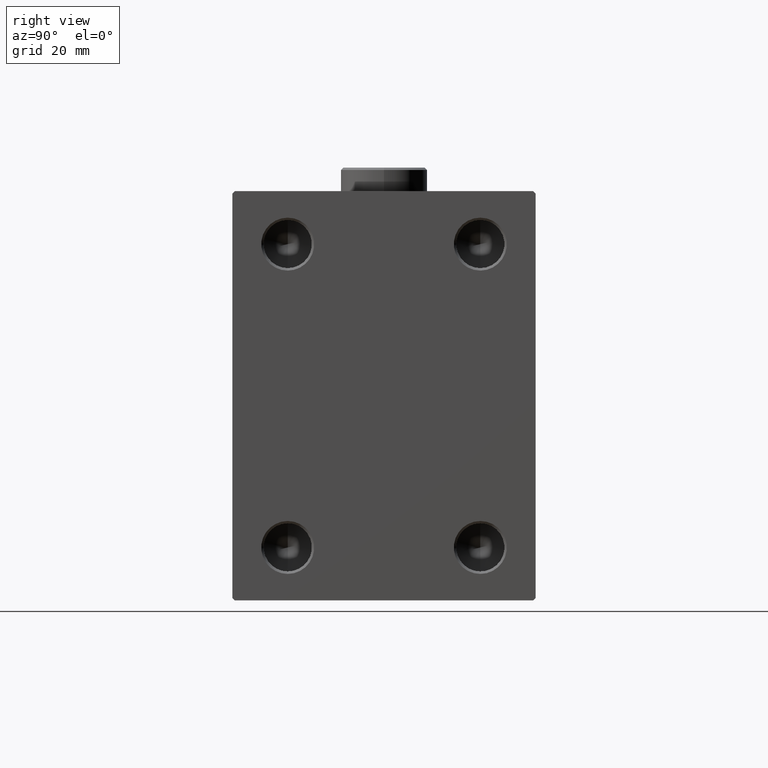
[diagram: clean part render]
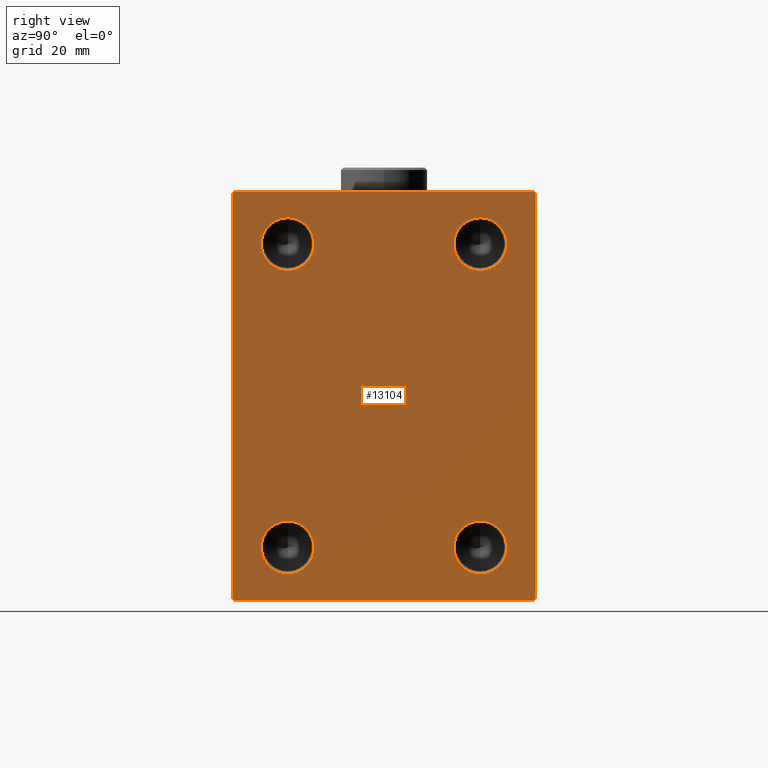
[diagram: same view with one face highlighted and labeled with its STEP entity id]
A machine part, right view. The second image highlights one B-rep face of the part: STEP entity #13104.
In plain terms, the highlighted planar face has unit normal (1, 0, 0).
Its self-contained STEP definition (entity closure, byte-faithful):
#237 = VECTOR ( 'NONE', #31313, 1000.000000000000000 ) ;
#495 = VECTOR ( 'NONE', #10926, 1000.000000000000000 ) ;
#1264 = AXIS2_PLACEMENT_3D ( 'NONE', #5725, #5270, #19765 ) ;
#1404 = VERTEX_POINT ( 'NONE', #1957 ) ;
#1792 = VERTEX_POINT ( 'NONE', #3763 ) ;
#1957 = CARTESIAN_POINT ( 'NONE',  ( 93.00000000000000000, 31.50000000000001421, -42.00000000000000711 ) ) ;
#2220 = CARTESIAN_POINT ( 'NONE',  ( 93.00000000000000000, 19.99999999999999645, 31.50000000000000000 ) ) ;
#2361 = AXIS2_PLACEMENT_3D ( 'NONE', #7574, #18849, #35681 ) ;
#2587 = EDGE_CURVE ( 'NONE', #4624, #18698, #13911, .T. ) ;
#2611 = VECTOR ( 'NONE', #16049, 999.9999999999998863 ) ;
#3508 = EDGE_CURVE ( 'NONE', #1792, #37501, #35100, .T. ) ;
#3623 = CARTESIAN_POINT ( 'NONE',  ( 93.00000000000000000, 31.00000000000000000, -42.50000000000000711 ) ) ;
#3717 = CARTESIAN_POINT ( 'NONE',  ( 93.00000000000000000, -31.00000000000000000, 42.49999999999998579 ) ) ;
#3763 = CARTESIAN_POINT ( 'NONE',  ( 93.00000000000000000, -20.00000000000000355, -25.99999999999999289 ) ) ;
#3961 = CARTESIAN_POINT ( 'NONE',  ( 93.00000000000000000, -20.00000000000000355, -37.00000000000000711 ) ) ;
#4113 = EDGE_CURVE ( 'NONE', #9943, #38829, #18216, .T. ) ;
#4624 = VERTEX_POINT ( 'NONE', #4744 ) ;
#4744 = CARTESIAN_POINT ( 'NONE',  ( 93.00000000000000000, 31.00000000000000000, 42.49999999999999289 ) ) ;
#5109 = DIRECTION ( 'NONE',  ( 0.000000000000000000, 0.000000000000000000, -1.000000000000000000 ) ) ;
#5224 = PLANE ( 'NONE',  #16298 ) ;
#5270 = DIRECTION ( 'NONE',  ( 1.000000000000000000, -0.000000000000000000, -0.000000000000000000 ) ) ;
#5314 = CARTESIAN_POINT ( 'NONE',  ( 93.00000000000000000, -31.50000000000000000, 41.99999999999998579 ) ) ;
#5420 = CARTESIAN_POINT ( 'NONE',  ( 93.00000000000000000, -31.50000000000000000, -42.50000000000000711 ) ) ;
#5454 = DIRECTION ( 'NONE',  ( 1.000000000000000000, -0.000000000000000000, -0.000000000000000000 ) ) ;
#5725 = CARTESIAN_POINT ( 'NONE',  ( 93.00000000000000000, -20.00000000000000355, -31.50000000000000000 ) ) ;
#6032 = EDGE_CURVE ( 'NONE', #21961, #38387, #40218, .T. ) ;
#6218 = LINE ( 'NONE', #38462, #237 ) ;
#6735 = EDGE_LOOP ( 'NONE', ( #19171, #9983 ) ) ;
#7081 = CARTESIAN_POINT ( 'NONE',  ( 93.00000000000000000, 19.99999999999999645, 37.00000000000000711 ) ) ;
#7145 = EDGE_LOOP ( 'NONE', ( #18475, #44959 ) ) ;
#7201 = CIRCLE ( 'NONE', #38091, 5.500000000000005329 ) ;
#7214 = DIRECTION ( 'NONE',  ( 0.000000000000000000, 0.000000000000000000, -1.000000000000000000 ) ) ;
#7574 = CARTESIAN_POINT ( 'NONE',  ( 93.00000000000000000, -20.00000000000000355, 31.50000000000000000 ) ) ;
#7927 = AXIS2_PLACEMENT_3D ( 'NONE', #29682, #43741, #44796 ) ;
#8453 = LINE ( 'NONE', #25737, #2611 ) ;
#8678 = CARTESIAN_POINT ( 'NONE',  ( 93.00000000000000000, 0.000000000000000000, 0.000000000000000000 ) ) ;
#8900 = FACE_BOUND ( 'NONE', #7145, .T. ) ;
#9140 = VERTEX_POINT ( 'NONE', #26507 ) ;
#9331 = VERTEX_POINT ( 'NONE', #28987 ) ;
#9427 = EDGE_CURVE ( 'NONE', #38387, #21961, #32209, .T. ) ;
#9513 = ORIENTED_EDGE ( 'NONE', *, *, #41461, .T. ) ;
#9522 = EDGE_CURVE ( 'NONE', #9866, #33808, #7201, .T. ) ;
#9653 = CARTESIAN_POINT ( 'NONE',  ( 93.00000000000000000, -20.00000000000000355, 37.00000000000000711 ) ) ;
#9866 = VERTEX_POINT ( 'NONE', #9653 ) ;
#9943 = VERTEX_POINT ( 'NONE', #5314 ) ;
#9983 = ORIENTED_EDGE ( 'NONE', *, *, #15320, .F. ) ;
#10443 = CIRCLE ( 'NONE', #2361, 5.500000000000005329 ) ;
#10926 = DIRECTION ( 'NONE',  ( -0.000000000000000000, 0.7071067811865328068, -0.7071067811865622277 ) ) ;
#11119 = CARTESIAN_POINT ( 'NONE',  ( 93.00000000000000000, -20.00000000000000355, 31.50000000000000000 ) ) ;
#11236 = CIRCLE ( 'NONE', #37008, 5.500000000000005329 ) ;
#11342 = CARTESIAN_POINT ( 'NONE',  ( 93.00000000000000000, -20.00000000000000355, 25.99999999999999289 ) ) ;
#11720 = CARTESIAN_POINT ( 'NONE',  ( 93.00000000000000000, 19.99999999999999645, -31.50000000000000000 ) ) ;
#12813 = DIRECTION ( 'NONE',  ( 0.000000000000000000, 0.000000000000000000, -1.000000000000000000 ) ) ;
#13104 = ADVANCED_FACE ( 'NONE', ( #33772, #22958, #33316, #8900, #22280 ), #5224, .T. ) ;
#13911 = LINE ( 'NONE', #21507, #30669 ) ;
#13940 = ORIENTED_EDGE ( 'NONE', *, *, #31252, .T. ) ;
#13994 = CARTESIAN_POINT ( 'NONE',  ( 93.00000000000000000, -31.50000000000000000, -41.99999999999998579 ) ) ;
#15196 = AXIS2_PLACEMENT_3D ( 'NONE', #11720, #25776, #39838 ) ;
#15227 = CARTESIAN_POINT ( 'NONE',  ( 93.00000000000000000, -31.50000000000000000, 42.49999999999998579 ) ) ;
#15320 = EDGE_CURVE ( 'NONE', #33808, #9866, #10443, .T. ) ;
#16049 = DIRECTION ( 'NONE',  ( -0.000000000000000000, 0.7071067811865574537, 0.7071067811865376918 ) ) ;
#16298 = AXIS2_PLACEMENT_3D ( 'NONE', #8678, #19720, #22739 ) ;
#16376 = EDGE_CURVE ( 'NONE', #43194, #9331, #11236, .T. ) ;
#16946 = CARTESIAN_POINT ( 'NONE',  ( 93.00000000000000000, -36.74999999999999289, 36.74999999999999289 ) ) ;
#17289 = ORIENTED_EDGE ( 'NONE', *, *, #2587, .T. ) ;
#17308 = DIRECTION ( 'NONE',  ( 1.000000000000000000, -0.000000000000000000, -0.000000000000000000 ) ) ;
#17428 = CIRCLE ( 'NONE', #20377, 5.500000000000005329 ) ;
#18016 = DIRECTION ( 'NONE',  ( 1.000000000000000000, -0.000000000000000000, -0.000000000000000000 ) ) ;
#18216 = LINE ( 'NONE', #15227, #33628 ) ;
#18475 = ORIENTED_EDGE ( 'NONE', *, *, #6032, .F. ) ;
#18698 = VERTEX_POINT ( 'NONE', #3717 ) ;
#18849 = DIRECTION ( 'NONE',  ( 1.000000000000000000, -0.000000000000000000, -0.000000000000000000 ) ) ;
#18921 = EDGE_CURVE ( 'NONE', #1404, #9140, #6218, .T. ) ;
#19171 = ORIENTED_EDGE ( 'NONE', *, *, #9522, .F. ) ;
#19226 = VERTEX_POINT ( 'NONE', #3623 ) ;
#19634 = EDGE_LOOP ( 'NONE', ( #38261, #29330 ) ) ;
#19693 = DIRECTION ( 'NONE',  ( 0.000000000000000000, 1.000000000000000000, 0.000000000000000000 ) ) ;
#19720 = DIRECTION ( 'NONE',  ( 1.000000000000000000, 0.000000000000000000, 0.000000000000000000 ) ) ;
#19765 = DIRECTION ( 'NONE',  ( 0.000000000000000000, 0.000000000000000000, -1.000000000000000000 ) ) ;
#19906 = ORIENTED_EDGE ( 'NONE', *, *, #27887, .T. ) ;
#20377 = AXIS2_PLACEMENT_3D ( 'NONE', #23360, #17308, #23800 ) ;
#21394 = CARTESIAN_POINT ( 'NONE',  ( 93.00000000000000000, 19.99999999999999645, -25.99999999999999289 ) ) ;
#21507 = CARTESIAN_POINT ( 'NONE',  ( 93.00000000000000000, 31.50000000000000000, 42.49999999999999289 ) ) ;
#21961 = VERTEX_POINT ( 'NONE', #21394 ) ;
#22020 = VECTOR ( 'NONE', #41157, 999.9999999999998863 ) ;
#22280 = FACE_OUTER_BOUND ( 'NONE', #35172, .T. ) ;
#22739 = DIRECTION ( 'NONE',  ( 0.000000000000000000, 0.000000000000000000, -1.000000000000000000 ) ) ;
#22958 = FACE_BOUND ( 'NONE', #6735, .T. ) ;
#22963 = LINE ( 'NONE', #23633, #22020 ) ;
#23360 = CARTESIAN_POINT ( 'NONE',  ( 93.00000000000000000, 19.99999999999999645, 31.50000000000000000 ) ) ;
#23633 = CARTESIAN_POINT ( 'NONE',  ( 93.00000000000000000, 36.75000000000042633, 36.74999999999941025 ) ) ;
#23800 = DIRECTION ( 'NONE',  ( 0.000000000000000000, 0.000000000000000000, -1.000000000000000000 ) ) ;
#24287 = VERTEX_POINT ( 'NONE', #28528 ) ;
#25408 = EDGE_LOOP ( 'NONE', ( #41013, #33703 ) ) ;
#25626 = DIRECTION ( 'NONE',  ( 1.000000000000000000, -0.000000000000000000, -0.000000000000000000 ) ) ;
#25737 = CARTESIAN_POINT ( 'NONE',  ( 93.00000000000000000, 36.74999999999957367, -36.75000000000059686 ) ) ;
#25776 = DIRECTION ( 'NONE',  ( 1.000000000000000000, -0.000000000000000000, -0.000000000000000000 ) ) ;
#26271 = VECTOR ( 'NONE', #19693, 1000.000000000000000 ) ;
#26507 = CARTESIAN_POINT ( 'NONE',  ( 93.00000000000000000, 31.50000000000000000, 41.99999999999997868 ) ) ;
#27122 = LINE ( 'NONE', #16946, #37327 ) ;
#27887 = EDGE_CURVE ( 'NONE', #19226, #1404, #8453, .T. ) ;
#28528 = CARTESIAN_POINT ( 'NONE',  ( 93.00000000000000000, -31.00000000000000000, -42.50000000000000711 ) ) ;
#28987 = CARTESIAN_POINT ( 'NONE',  ( 93.00000000000000000, 19.99999999999999645, 25.99999999999999289 ) ) ;
#29067 = CARTESIAN_POINT ( 'NONE',  ( 93.00000000000000000, -20.00000000000000355, -31.50000000000000000 ) ) ;
#29330 = ORIENTED_EDGE ( 'NONE', *, *, #31467, .F. ) ;
#29682 = CARTESIAN_POINT ( 'NONE',  ( 93.00000000000000000, 19.99999999999999645, -31.50000000000000000 ) ) ;
#30669 = VECTOR ( 'NONE', #41577, 1000.000000000000000 ) ;
#31115 = ORIENTED_EDGE ( 'NONE', *, *, #35412, .T. ) ;
#31252 = EDGE_CURVE ( 'NONE', #38829, #24287, #39490, .T. ) ;
#31313 = DIRECTION ( 'NONE',  ( 0.000000000000000000, -1.632680918566406547E-16, 1.000000000000000000 ) ) ;
#31467 = EDGE_CURVE ( 'NONE', #9331, #43194, #17428, .T. ) ;
#31882 = CARTESIAN_POINT ( 'NONE',  ( 93.00000000000000000, -36.75000000000065370, -36.74999999999911893 ) ) ;
#32209 = CIRCLE ( 'NONE', #7927, 5.500000000000005329 ) ;
#33166 = ORIENTED_EDGE ( 'NONE', *, *, #18921, .T. ) ;
#33283 = LINE ( 'NONE', #5420, #26271 ) ;
#33316 = FACE_BOUND ( 'NONE', #25408, .T. ) ;
#33628 = VECTOR ( 'NONE', #5109, 1000.000000000000000 ) ;
#33703 = ORIENTED_EDGE ( 'NONE', *, *, #41933, .F. ) ;
#33772 = FACE_BOUND ( 'NONE', #19634, .T. ) ;
#33808 = VERTEX_POINT ( 'NONE', #11342 ) ;
#35100 = CIRCLE ( 'NONE', #1264, 5.500000000000005329 ) ;
#35172 = EDGE_LOOP ( 'NONE', ( #17289, #38175, #36084, #13940, #31115, #19906, #33166, #9513 ) ) ;
#35253 = EDGE_CURVE ( 'NONE', #18698, #9943, #27122, .T. ) ;
#35412 = EDGE_CURVE ( 'NONE', #24287, #19226, #33283, .T. ) ;
#35681 = DIRECTION ( 'NONE',  ( 0.000000000000000000, 0.000000000000000000, -1.000000000000000000 ) ) ;
#36084 = ORIENTED_EDGE ( 'NONE', *, *, #4113, .T. ) ;
#37008 = AXIS2_PLACEMENT_3D ( 'NONE', #2220, #5454, #12813 ) ;
#37327 = VECTOR ( 'NONE', #38160, 1000.000000000000114 ) ;
#37501 = VERTEX_POINT ( 'NONE', #3961 ) ;
#38091 = AXIS2_PLACEMENT_3D ( 'NONE', #11119, #18016, #7214 ) ;
#38160 = DIRECTION ( 'NONE',  ( 0.000000000000000000, -0.7071067811865474617, -0.7071067811865474617 ) ) ;
#38175 = ORIENTED_EDGE ( 'NONE', *, *, #35253, .T. ) ;
#38261 = ORIENTED_EDGE ( 'NONE', *, *, #16376, .F. ) ;
#38387 = VERTEX_POINT ( 'NONE', #43419 ) ;
#38462 = CARTESIAN_POINT ( 'NONE',  ( 93.00000000000000000, 31.50000000000001421, -42.50000000000000711 ) ) ;
#38829 = VERTEX_POINT ( 'NONE', #13994 ) ;
#39490 = LINE ( 'NONE', #31882, #495 ) ;
#39838 = DIRECTION ( 'NONE',  ( 0.000000000000000000, 0.000000000000000000, -1.000000000000000000 ) ) ;
#40218 = CIRCLE ( 'NONE', #15196, 5.500000000000005329 ) ;
#41013 = ORIENTED_EDGE ( 'NONE', *, *, #3508, .F. ) ;
#41157 = DIRECTION ( 'NONE',  ( -0.000000000000000000, -0.7071067811865376918, 0.7071067811865574537 ) ) ;
#41461 = EDGE_CURVE ( 'NONE', #9140, #4624, #22963, .T. ) ;
#41577 = DIRECTION ( 'NONE',  ( 0.000000000000000000, -1.000000000000000000, -1.101411730778925171E-16 ) ) ;
#41933 = EDGE_CURVE ( 'NONE', #37501, #1792, #42607, .T. ) ;
#42607 = CIRCLE ( 'NONE', #44103, 5.500000000000005329 ) ;
#43129 = DIRECTION ( 'NONE',  ( 0.000000000000000000, 0.000000000000000000, -1.000000000000000000 ) ) ;
#43194 = VERTEX_POINT ( 'NONE', #7081 ) ;
#43419 = CARTESIAN_POINT ( 'NONE',  ( 93.00000000000000000, 19.99999999999999645, -37.00000000000000711 ) ) ;
#43741 = DIRECTION ( 'NONE',  ( 1.000000000000000000, -0.000000000000000000, -0.000000000000000000 ) ) ;
#44103 = AXIS2_PLACEMENT_3D ( 'NONE', #29067, #25626, #43129 ) ;
#44796 = DIRECTION ( 'NONE',  ( 0.000000000000000000, 0.000000000000000000, -1.000000000000000000 ) ) ;
#44959 = ORIENTED_EDGE ( 'NONE', *, *, #9427, .F. ) ;